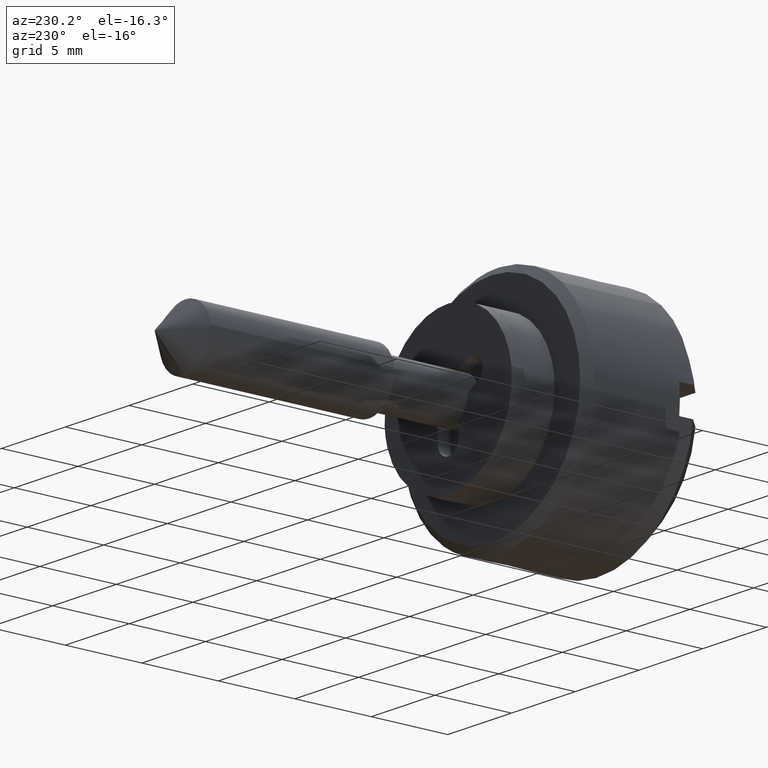
[diagram: clean part render]
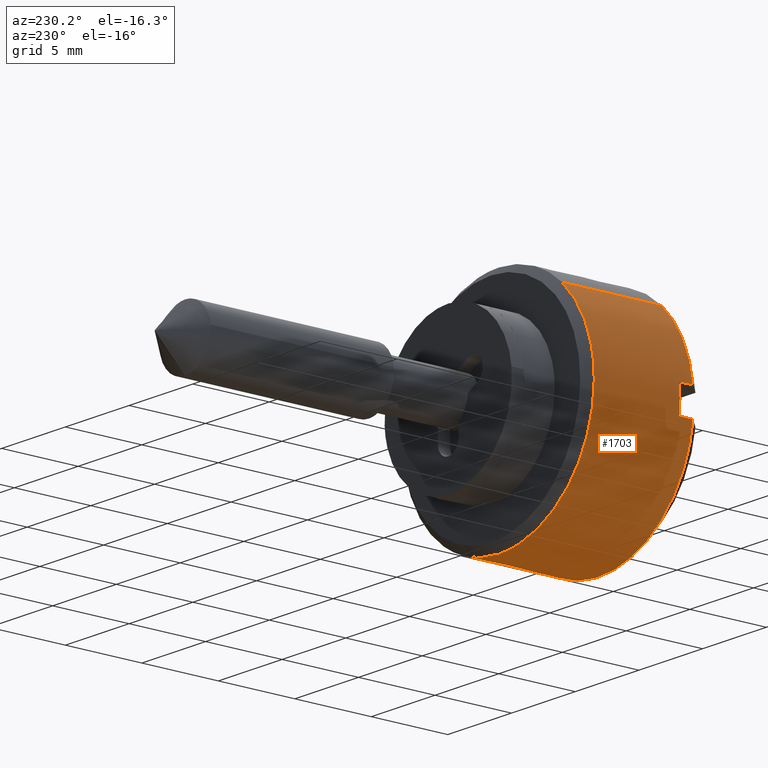
[diagram: same view with one face highlighted and labeled with its STEP entity id]
A machine part, auxiliary view. The second image highlights one B-rep face of the part: STEP entity #1703.
In plain terms, the highlighted face is a freeform B-spline surface patch.
Its self-contained STEP definition (entity closure, byte-faithful):
#1283=CARTESIAN_POINT('',(-2.500000000001232,7.499714422982490,-0.065449016247301));
#1284=VERTEX_POINT('',#1283);
#1290=CARTESIAN_POINT('',(-2.499999999999945,4.969649641987388,5.617168542592760));
#1291=VERTEX_POINT('',#1290);
#1292=CARTESIAN_POINT('',(-2.499999999999945,4.969649641987389,5.617168542592760));
#1293=CARTESIAN_POINT('',(-2.499999999999945,7.499999999999999,3.378504808501678));
#1294=CARTESIAN_POINT('',(-2.499999999999945,7.500000000000000,0.0));
#1295=CARTESIAN_POINT('',(-2.499999999999945,7.500000000000000,-0.032725131164750));
#1296=CARTESIAN_POINT('',(-2.500000000001232,7.499714422982490,-0.065449016247301));
#1304=(BOUNDED_CURVE()B_SPLINE_CURVE(2,(#1292,#1293,#1294,#1295,#1296),.UNSPECIFIED.,.F.,.U.)B_SPLINE_CURVE_WITH_KNOTS((3,2,3),(0.615779849362054,0.750000000000000,0.751539894335433),.UNSPECIFIED.)CURVE()GEOMETRIC_REPRESENTATION_ITEM()RATIONAL_B_SPLINE_CURVE((0.854350164913177,0.842751312200102,1.0,0.998195901565850,0.996414028099374))REPRESENTATION_ITEM(''));
#1305=EDGE_CURVE('',#1291,#1284,#1304,.T.);
#1341=CARTESIAN_POINT('',(-2.499999999999945,-4.287827432851608,-6.153416604300274));
#1342=VERTEX_POINT('',#1341);
#1358=CARTESIAN_POINT('',(-2.499999999999945,0.0,-7.500000000000000));
#1359=VERTEX_POINT('',#1358);
#1360=CARTESIAN_POINT('',(-2.499999999999945,0.0,-7.500000000000000));
#1361=CARTESIAN_POINT('',(-2.499999999999945,-2.355359590819155,-7.500000000000001));
#1362=CARTESIAN_POINT('',(-2.499999999999944,-4.287827432851607,-6.153416604300274));
#1370=(BOUNDED_CURVE()B_SPLINE_CURVE(2,(#1360,#1361,#1362),.UNSPECIFIED.,.F.,.U.)B_SPLINE_CURVE_WITH_KNOTS((3,3),(0.0,0.098251831018926),.UNSPECIFIED.)CURVE()GEOMETRIC_REPRESENTATION_ITEM()RATIONAL_B_SPLINE_CURVE((1.0,0.884890819834205,0.860259141415425))REPRESENTATION_ITEM(''));
#1371=EDGE_CURVE('',#1359,#1342,#1370,.T.);
#1373=CARTESIAN_POINT('',(-2.500000000001232,7.499714422982490,-0.065449016247301));
#1374=CARTESIAN_POINT('',(-2.499999999999945,7.434834079443530,-7.500000000000001));
#1375=CARTESIAN_POINT('',(-2.499999999999945,0.0,-7.500000000000000));
#1383=(BOUNDED_CURVE()B_SPLINE_CURVE(2,(#1373,#1374,#1375),.UNSPECIFIED.,.F.,.U.)B_SPLINE_CURVE_WITH_KNOTS((3,3),(0.751539894335433,1.0),.UNSPECIFIED.)CURVE()GEOMETRIC_REPRESENTATION_ITEM()RATIONAL_B_SPLINE_CURVE((0.996414028099375,0.708910879620697,1.0))REPRESENTATION_ITEM(''));
#1384=EDGE_CURVE('',#1284,#1359,#1383,.T.);
#1607=CARTESIAN_POINT('',(-9.162397500000004,-4.287829581630136,-6.153415106987136));
#1608=CARTESIAN_POINT('',(-9.162397500000006,1.191735502885045,-9.971691763989039));
#1609=CARTESIAN_POINT('',(-9.162397500000004,5.617167905917516,-4.969650361618027));
#1610=CARTESIAN_POINT('',(-9.162397500000004,10.586818267535543,0.647517544299490));
#1611=CARTESIAN_POINT('',(-9.162397500000004,4.969650361618027,5.617167905917516));
#1612=CARTESIAN_POINT('',(-2.333440062499944,-4.287829581630136,-6.153415106987136));
#1613=CARTESIAN_POINT('',(-2.333440062499943,1.191735502885045,-9.971691763989039));
#1614=CARTESIAN_POINT('',(-2.333440062499943,5.617167905917516,-4.969650361618027));
#1615=CARTESIAN_POINT('',(-2.333440062499943,10.586818267535543,0.647517544299490));
#1616=CARTESIAN_POINT('',(-2.333440062499943,4.969650361618027,5.617167905917516));
#1624=(BOUNDED_SURFACE()B_SPLINE_SURFACE(2,1,((#1607,#1612),(#1608,#1613),(#1609,#1614),(#1610,#1615),(#1611,#1616)),.UNSPECIFIED.,.F.,.F.,.U.)B_SPLINE_SURFACE_WITH_KNOTS((3,2,3),(2,2),(0.0,11.432294321497420,23.858701192690258),(0.0,6.828957437500062),.UNSPECIFIED.)GEOMETRIC_REPRESENTATION_ITEM()RATIONAL_B_SPLINE_SURFACE(((0.956886118190660,0.956886118190660),(0.730538238691624,0.730538238691624),(1.0,1.0),(0.707106781186548,0.707106781186548),(1.0,1.0)))REPRESENTATION_ITEM('')SURFACE());
#1625=CARTESIAN_POINT('',(-8.999899999999986,-4.287828175261721,-6.153416086973866));
#1626=VERTEX_POINT('',#1625);
#1627=CARTESIAN_POINT('',(-8.999900000000000,7.445804187594510,-0.900000000000000));
#1628=VERTEX_POINT('',#1627);
#1629=CARTESIAN_POINT('',(-8.999899999999986,-4.287828175261720,-6.153416086973867));
#1630=CARTESIAN_POINT('',(-8.999900000000000,-2.355360087879004,-7.500000000000000));
#1631=CARTESIAN_POINT('',(-8.999900000000000,0.0,-7.500000000000000));
#1632=CARTESIAN_POINT('',(-8.999900000000002,6.648039453209386,-7.499999999999999));
#1633=CARTESIAN_POINT('',(-8.999900000000000,7.445804187594514,-0.900000000000002));
#1641=(BOUNDED_CURVE()B_SPLINE_CURVE(2,(#1629,#1630,#1631,#1632,#1633),.UNSPECIFIED.,.F.,.U.)B_SPLINE_CURVE_WITH_KNOTS((3,2,3),(0.288480247605280,0.500000000000000,1.0),.UNSPECIFIED.)CURVE()GEOMETRIC_REPRESENTATION_ITEM()RATIONAL_B_SPLINE_CURVE((0.877146962633948,0.893534272809079,1.0,0.748331477354788,1.0))REPRESENTATION_ITEM(''));
#1642=EDGE_CURVE('',#1626,#1628,#1641,.T.);
#1643=ORIENTED_EDGE('',*,*,#1642,.T.);
#1644=CARTESIAN_POINT('',(-8.099900000000000,7.445804187594550,-0.900000000000000));
#1645=VERTEX_POINT('',#1644);
#1646=CARTESIAN_POINT('',(-8.999900000000000,7.445804187594510,-0.900000000000000));
#1647=CARTESIAN_POINT('',(-8.099900000000000,7.445804187594550,-0.900000000000000));
#1648=QUASI_UNIFORM_CURVE('',1,(#1646,#1647),.UNSPECIFIED.,.F.,.U.);
#1649=EDGE_CURVE('',#1628,#1645,#1648,.T.);
#1650=ORIENTED_EDGE('',*,*,#1649,.T.);
#1651=CARTESIAN_POINT('',(-8.099900000000000,7.445804187594510,0.900000000000000));
#1652=VERTEX_POINT('',#1651);
#1653=CARTESIAN_POINT('',(-8.099900000000000,7.445804187594550,-0.900000000000000));
#1654=CARTESIAN_POINT('',(-8.099900000000000,7.554590287737940,-2.710505E-015));
#1655=CARTESIAN_POINT('',(-8.099900000000000,7.445804187594514,0.899999999999998));
#1663=(BOUNDED_CURVE()B_SPLINE_CURVE(2,(#1653,#1654,#1655),.UNSPECIFIED.,.F.,.U.)CURVE()GEOMETRIC_REPRESENTATION_ITEM()QUASI_UNIFORM_CURVE()RATIONAL_B_SPLINE_CURVE((1.0,0.992773891679269,1.0))REPRESENTATION_ITEM(''));
#1664=EDGE_CURVE('',#1645,#1652,#1663,.T.);
#1665=ORIENTED_EDGE('',*,*,#1664,.T.);
#1666=CARTESIAN_POINT('',(-8.999900000000000,7.445804187594510,0.900000000000000));
#1667=VERTEX_POINT('',#1666);
#1668=CARTESIAN_POINT('',(-8.099900000000000,7.445804187594510,0.900000000000000));
#1669=CARTESIAN_POINT('',(-8.999900000000000,7.445804187594510,0.900000000000000));
#1670=QUASI_UNIFORM_CURVE('',1,(#1668,#1669),.UNSPECIFIED.,.F.,.U.);
#1671=EDGE_CURVE('',#1652,#1667,#1670,.T.);
#1672=ORIENTED_EDGE('',*,*,#1671,.T.);
#1673=CARTESIAN_POINT('',(-8.999900000000000,4.969650341747136,5.617167923497798));
#1674=VERTEX_POINT('',#1673);
#1675=CARTESIAN_POINT('',(-8.999900000000000,7.445804187594514,0.900000000000000));
#1676=CARTESIAN_POINT('',(-8.999900000000000,7.103855276764729,3.728982924666443));
#1677=CARTESIAN_POINT('',(-8.999900000000000,4.969650341747136,5.617167923497799));
#1685=(BOUNDED_CURVE()B_SPLINE_CURVE(2,(#1675,#1676,#1677),.UNSPECIFIED.,.F.,.U.)B_SPLINE_CURVE_WITH_KNOTS((3,3),(0.0,0.250310219562906),.UNSPECIFIED.)CURVE()GEOMETRIC_REPRESENTATION_ITEM()RATIONAL_B_SPLINE_CURVE((1.0,0.874009593679210,0.874165932434326))REPRESENTATION_ITEM(''));
#1686=EDGE_CURVE('',#1667,#1674,#1685,.T.);
#1687=ORIENTED_EDGE('',*,*,#1686,.T.);
#1688=CARTESIAN_POINT('',(-8.999900000000000,4.969650341747136,5.617167923497798));
#1689=CARTESIAN_POINT('',(-2.499999999999945,4.969649641987388,5.617168542592760));
#1690=QUASI_UNIFORM_CURVE('',1,(#1688,#1689),.UNSPECIFIED.,.F.,.U.);
#1691=EDGE_CURVE('',#1674,#1291,#1690,.T.);
#1692=ORIENTED_EDGE('',*,*,#1691,.T.);
#1693=ORIENTED_EDGE('',*,*,#1305,.T.);
#1694=ORIENTED_EDGE('',*,*,#1384,.T.);
#1695=ORIENTED_EDGE('',*,*,#1371,.T.);
#1696=CARTESIAN_POINT('',(-8.999899999999986,-4.287828175261721,-6.153416086973866));
#1697=CARTESIAN_POINT('',(-2.499999999999945,-4.287827432851608,-6.153416604300274));
#1698=QUASI_UNIFORM_CURVE('',1,(#1696,#1697),.UNSPECIFIED.,.F.,.U.);
#1699=EDGE_CURVE('',#1626,#1342,#1698,.T.);
#1700=ORIENTED_EDGE('',*,*,#1699,.F.);
#1701=EDGE_LOOP('',(#1643,#1650,#1665,#1672,#1687,#1692,#1693,#1694,#1695,#1700));
#1702=FACE_OUTER_BOUND('',#1701,.T.);
#1703=ADVANCED_FACE('',(#1702),#1624,.T.);